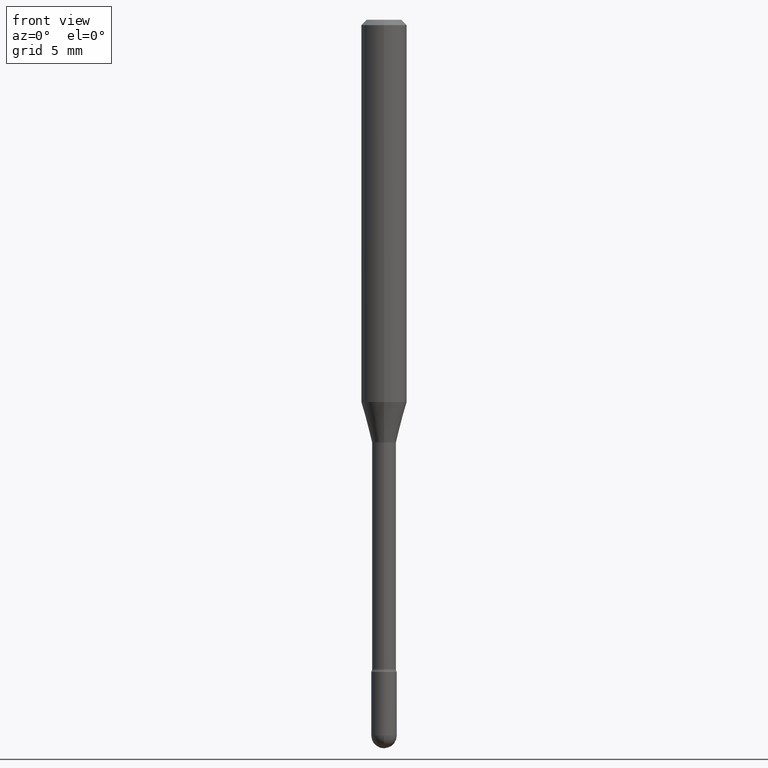
[diagram: clean part render]
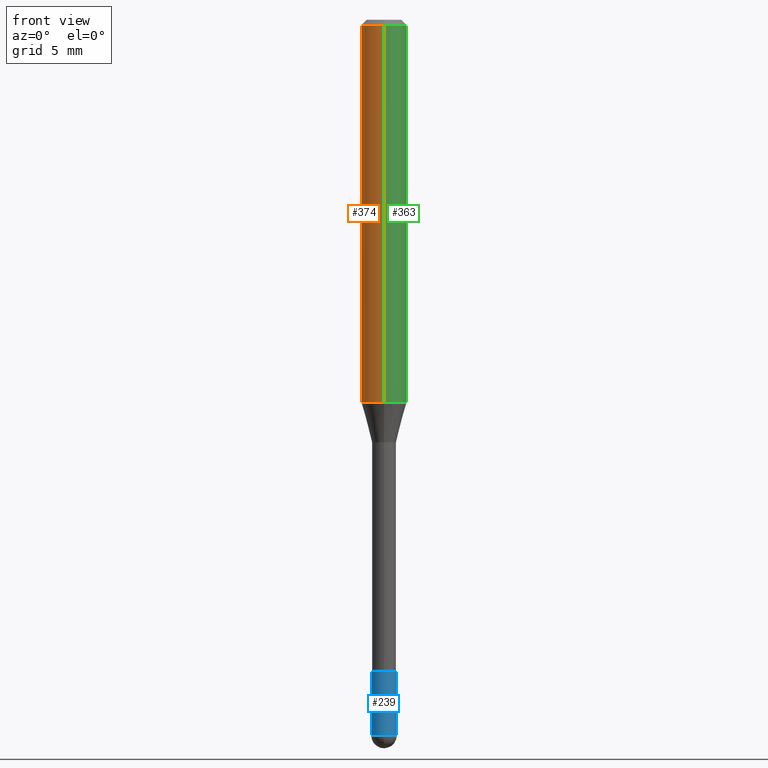
[diagram: same view with three faces highlighted in distinct colors, each labeled with its STEP entity id]
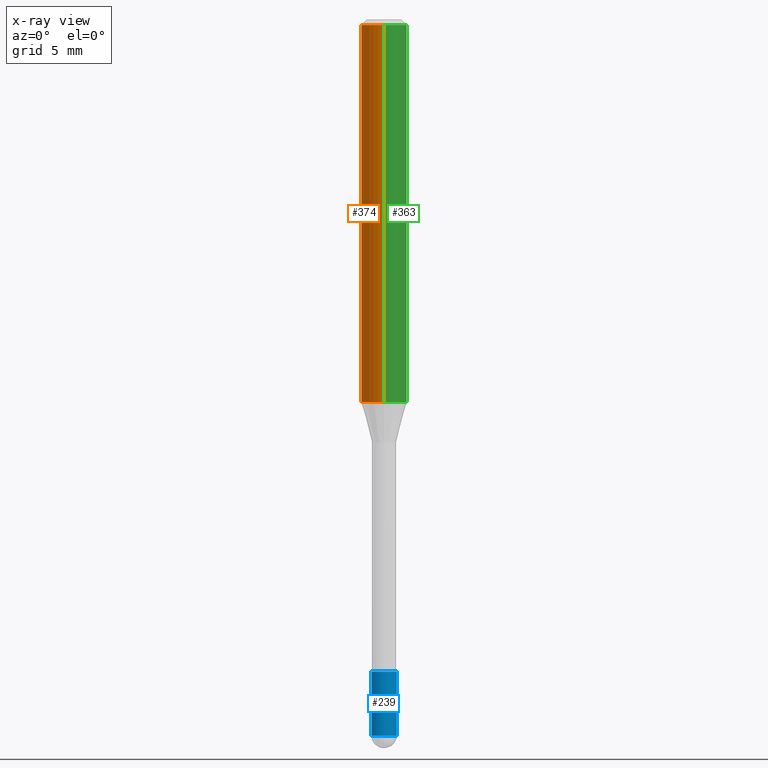
[diagram: x-ray of the same camera — body ghosted, the three highlighted faces saturated]
A machine part, front view with three faces highlighted in distinct colors.
The next image is the same camera in x-ray (body ghosted, the three faces saturated) — at least one of them is partly hidden behind the body in this view.
Their STEP definitions:

[orange] entity #374 — the highlighted cylindrical surface (edge-blend (fillet) strip) has radius 1.5875 mm, axis along (-0, 0, 1).
#8 = VERTEX_POINT ( 'NONE', #291 ) ;
#16 = FACE_OUTER_BOUND ( 'NONE', #332, .T. ) ;
#21 = AXIS2_PLACEMENT_3D ( 'NONE', #160, #297, #212 ) ;
#52 = VERTEX_POINT ( 'NONE', #474 ) ;
#55 = LINE ( 'NONE', #546, #342 ) ;
#62 = EDGE_CURVE ( 'NONE', #8, #202, #528, .T. ) ;
#67 = DIRECTION ( 'NONE',  ( -2.445497683573463397E-29, 3.491439984779462686E-15, 1.000000000000000000 ) ) ;
#69 = CARTESIAN_POINT ( 'NONE',  ( -4.364351673553912750E-16, -0.06250000000000005551, -0.01499999999999986587 ) ) ;
#94 = CARTESIAN_POINT ( 'NONE',  ( 4.440892098500625669E-16, 0.06250000000000000000, 2.598583998425296453E-16 ) ) ;
#122 = AXIS2_PLACEMENT_3D ( 'NONE', #497, #465, #462 ) ;
#137 = ORIENTED_EDGE ( 'NONE', *, *, #371, .T. ) ;
#160 = CARTESIAN_POINT ( 'NONE',  ( -1.169113584055446105E-44, 1.669184350826100908E-30, 4.780733988912460139E-16 ) ) ;
#164 = DIRECTION ( 'NONE',  ( -6.982962677686265922E-15, -1.000000000000000000, 4.370956789862821150E-15 ) ) ;
#182 = EDGE_CURVE ( 'NONE', #52, #202, #55, .T. ) ;
#183 = VECTOR ( 'NONE', #365, 39.37007874015748143 ) ;
#189 = ORIENTED_EDGE ( 'NONE', *, *, #182, .T. ) ;
#202 = VERTEX_POINT ( 'NONE', #69 ) ;
#210 = CYLINDRICAL_SURFACE ( 'NONE', #21, 0.06250000000000000000 ) ;
#212 = DIRECTION ( 'NONE',  ( -6.982962677686265922E-15, -1.000000000000000000, 3.491439984779462292E-15 ) ) ;
#233 = EDGE_CURVE ( 'NONE', #289, #8, #410, .T. ) ;
#245 = AXIS2_PLACEMENT_3D ( 'NONE', #549, #67, #164 ) ;
#289 = VERTEX_POINT ( 'NONE', #347 ) ;
#291 = CARTESIAN_POINT ( 'NONE',  ( 4.440892098500883528E-16, 0.06249999999999993755, -0.01500000000000030129 ) ) ;
#296 = CIRCLE ( 'NONE', #245, 0.06250000000000000000 ) ;
#297 = DIRECTION ( 'NONE',  ( -2.445497683573463397E-29, 3.491439984779462686E-15, 1.000000000000000000 ) ) ;
#332 = EDGE_LOOP ( 'NONE', ( #536, #137, #189, #424 ) ) ;
#342 = VECTOR ( 'NONE', #468, 39.37007874015748143 ) ;
#347 = CARTESIAN_POINT ( 'NONE',  ( 4.440892098500882541E-16, 0.06249999999999634320, -1.049531296095961519 ) ) ;
#365 = DIRECTION ( 'NONE',  ( -2.445497683573463397E-29, 3.491439984779462686E-15, 1.000000000000000000 ) ) ;
#371 = EDGE_CURVE ( 'NONE', #289, #52, #296, .T. ) ;
#374 = ADVANCED_FACE ( 'NONE', ( #16 ), #210, .T. ) ;
#410 = LINE ( 'NONE', #94, #183 ) ;
#424 = ORIENTED_EDGE ( 'NONE', *, *, #62, .F. ) ;
#462 = DIRECTION ( 'NONE',  ( -6.982962677686265922E-15, -1.000000000000000000, 3.483106191921935554E-15 ) ) ;
#465 = DIRECTION ( 'NONE',  ( -2.445497683573463397E-29, 3.491439984779462686E-15, 1.000000000000000000 ) ) ;
#468 = DIRECTION ( 'NONE',  ( -2.445497683573463397E-29, 3.491439984779462686E-15, 1.000000000000000000 ) ) ;
#474 = CARTESIAN_POINT ( 'NONE',  ( -4.364351673553658835E-16, -0.06250000000000366374, -1.049531296095960853 ) ) ;
#497 = CARTESIAN_POINT ( 'NONE',  ( 3.668246525360215467E-31, -5.237159977169223045E-17, -0.01500000000000008271 ) ) ;
#528 = CIRCLE ( 'NONE', #122, 0.06250000000000000000 ) ;
#536 = ORIENTED_EDGE ( 'NONE', *, *, #233, .F. ) ;
#546 = CARTESIAN_POINT ( 'NONE',  ( -4.364351673553916201E-16, -0.06250000000000000000, 6.962883979399624318E-16 ) ) ;
#549 = CARTESIAN_POINT ( 'NONE',  ( 2.566626353440528363E-29, -3.664375532466852274E-15, -1.049531296095961297 ) ) ;

[blue] entity #239 — the highlighted cylindrical surface (edge-blend (fillet) strip) has radius 0.889 mm, axis along (-0, 0, 1).
#2 = EDGE_CURVE ( 'NONE', #305, #100, #418, .T. ) ;
#18 = CARTESIAN_POINT ( 'NONE',  ( 0.03500000000000000333, -6.799659907397025402E-15, -1.964999999999999858 ) ) ;
#20 = CIRCLE ( 'NONE', #229, 0.03500000000000000333 ) ;
#26 = CARTESIAN_POINT ( 'NONE',  ( -2.486899575159870668E-16, -0.03500000000000687284, -1.964999999999999858 ) ) ;
#29 = CARTESIAN_POINT ( 'NONE',  ( 4.805346204153793345E-29, -6.860760830826780393E-15, -1.964999999999999858 ) ) ;
#65 = ORIENTED_EDGE ( 'NONE', *, *, #509, .T. ) ;
#79 = ORIENTED_EDGE ( 'NONE', *, *, #117, .F. ) ;
#90 = AXIS2_PLACEMENT_3D ( 'NONE', #225, #431, #518 ) ;
#100 = VERTEX_POINT ( 'NONE', #168 ) ;
#110 = CARTESIAN_POINT ( 'NONE',  ( -0.03500000000000000333, 2.486899575160350887E-16, -1.721627281589217108E-30 ) ) ;
#117 = EDGE_CURVE ( 'NONE', #100, #390, #20, .T. ) ;
#124 = DIRECTION ( 'NONE',  ( 1.000000000000000000, -6.982962677686276966E-15, 0.000000000000000000 ) ) ;
#167 = CARTESIAN_POINT ( 'NONE',  ( -0.03500000000000000333, -6.306566256161970939E-15, -1.964999999999999858 ) ) ;
#168 = CARTESIAN_POINT ( 'NONE',  ( -0.03500000000000000333, -6.306566256161970939E-15, -1.790000000000000036 ) ) ;
#179 = DIRECTION ( 'NONE',  ( -2.445468806185136877E-29, 3.491481338843145188E-15, 1.000000000000000000 ) ) ;
#205 = VERTEX_POINT ( 'NONE', #26 ) ;
#225 = CARTESIAN_POINT ( 'NONE',  ( 0.000000000000000000, 0.000000000000000000, 0.000000000000000000 ) ) ;
#228 = CARTESIAN_POINT ( 'NONE',  ( 0.03500000000000000333, -2.444036937190193250E-16, 1.706661871528577808E-30 ) ) ;
#229 = AXIS2_PLACEMENT_3D ( 'NONE', #430, #388, #124 ) ;
#239 = ADVANCED_FACE ( 'NONE', ( #534 ), #466, .T. ) ;
#250 = VECTOR ( 'NONE', #414, 39.37007874015748143 ) ;
#254 = EDGE_CURVE ( 'NONE', #205, #457, #272, .T. ) ;
#261 = VECTOR ( 'NONE', #179, 39.37007874015748143 ) ;
#268 = DIRECTION ( 'NONE',  ( -2.445468806185136597E-29, 3.491481338843145583E-15, 1.000000000000000000 ) ) ;
#269 = ORIENTED_EDGE ( 'NONE', *, *, #564, .T. ) ;
#272 = CIRCLE ( 'NONE', #312, 0.03500000000000000333 ) ;
#305 = VERTEX_POINT ( 'NONE', #167 ) ;
#310 = CARTESIAN_POINT ( 'NONE',  ( 4.805346204153793345E-29, -6.860760830826780393E-15, -1.964999999999999858 ) ) ;
#312 = AXIS2_PLACEMENT_3D ( 'NONE', #29, #513, #469 ) ;
#320 = LINE ( 'NONE', #228, #261 ) ;
#359 = DIRECTION ( 'NONE',  ( 1.000000000000000000, -6.982962677686276966E-15, 0.000000000000000000 ) ) ;
#360 = AXIS2_PLACEMENT_3D ( 'NONE', #310, #268, #359 ) ;
#367 = ORIENTED_EDGE ( 'NONE', *, *, #2, .F. ) ;
#388 = DIRECTION ( 'NONE',  ( -2.445468806185136597E-29, 3.491481338843145583E-15, 1.000000000000000000 ) ) ;
#390 = VERTEX_POINT ( 'NONE', #412 ) ;
#405 = ORIENTED_EDGE ( 'NONE', *, *, #254, .T. ) ;
#412 = CARTESIAN_POINT ( 'NONE',  ( 0.03500000000000000333, -6.494155290248250444E-15, -1.790000000000000036 ) ) ;
#414 = DIRECTION ( 'NONE',  ( -2.445468806185136877E-29, 3.491481338843145188E-15, 1.000000000000000000 ) ) ;
#418 = LINE ( 'NONE', #110, #250 ) ;
#430 = CARTESIAN_POINT ( 'NONE',  ( 4.377389163071394665E-29, -6.249751596529231267E-15, -1.790000000000000036 ) ) ;
#431 = DIRECTION ( 'NONE',  ( -2.445468806185136597E-29, 3.491481338843145583E-15, 1.000000000000000000 ) ) ;
#457 = VERTEX_POINT ( 'NONE', #18 ) ;
#466 = CYLINDRICAL_SURFACE ( 'NONE', #90, 0.03500000000000000333 ) ;
#469 = DIRECTION ( 'NONE',  ( 1.000000000000000000, -6.982962677686276966E-15, 0.000000000000000000 ) ) ;
#509 = EDGE_CURVE ( 'NONE', #305, #205, #562, .T. ) ;
#513 = DIRECTION ( 'NONE',  ( -2.445468806185136597E-29, 3.491481338843145583E-15, 1.000000000000000000 ) ) ;
#518 = DIRECTION ( 'NONE',  ( 1.000000000000000000, -6.982962677686265922E-15, 4.876176775795936353E-29 ) ) ;
#534 = FACE_OUTER_BOUND ( 'NONE', #544, .T. ) ;
#544 = EDGE_LOOP ( 'NONE', ( #367, #65, #405, #269, #79 ) ) ;
#562 = CIRCLE ( 'NONE', #360, 0.03500000000000000333 ) ;
#564 = EDGE_CURVE ( 'NONE', #457, #390, #320, .T. ) ;

[green] entity #363 — the highlighted cylindrical surface (edge-blend (fillet) strip) has radius 1.5875 mm, axis along (-0, 0, 1).
#8 = VERTEX_POINT ( 'NONE', #291 ) ;
#52 = VERTEX_POINT ( 'NONE', #474 ) ;
#55 = LINE ( 'NONE', #546, #342 ) ;
#69 = CARTESIAN_POINT ( 'NONE',  ( -4.364351673553912750E-16, -0.06250000000000005551, -0.01499999999999986587 ) ) ;
#74 = DIRECTION ( 'NONE',  ( -2.445497683573463397E-29, 3.491439984779462686E-15, 1.000000000000000000 ) ) ;
#87 = EDGE_CURVE ( 'NONE', #52, #289, #377, .T. ) ;
#94 = CARTESIAN_POINT ( 'NONE',  ( 4.440892098500625669E-16, 0.06250000000000000000, 2.598583998425296453E-16 ) ) ;
#98 = ORIENTED_EDGE ( 'NONE', *, *, #182, .F. ) ;
#107 = ORIENTED_EDGE ( 'NONE', *, *, #126, .F. ) ;
#109 = FACE_OUTER_BOUND ( 'NONE', #135, .T. ) ;
#111 = CIRCLE ( 'NONE', #244, 0.06250000000000000000 ) ;
#121 = DIRECTION ( 'NONE',  ( -6.982962677686265922E-15, -1.000000000000000000, 4.370956789862821150E-15 ) ) ;
#126 = EDGE_CURVE ( 'NONE', #202, #8, #111, .T. ) ;
#135 = EDGE_LOOP ( 'NONE', ( #144, #139, #107, #98 ) ) ;
#139 = ORIENTED_EDGE ( 'NONE', *, *, #233, .T. ) ;
#144 = ORIENTED_EDGE ( 'NONE', *, *, #87, .T. ) ;
#150 = AXIS2_PLACEMENT_3D ( 'NONE', #295, #550, #121 ) ;
#182 = EDGE_CURVE ( 'NONE', #52, #202, #55, .T. ) ;
#183 = VECTOR ( 'NONE', #365, 39.37007874015748143 ) ;
#202 = VERTEX_POINT ( 'NONE', #69 ) ;
#213 = CARTESIAN_POINT ( 'NONE',  ( -1.169113584055446105E-44, 1.669184350826100908E-30, 4.780733988912460139E-16 ) ) ;
#221 = CARTESIAN_POINT ( 'NONE',  ( 3.668246525360215467E-31, -5.237159977169223045E-17, -0.01500000000000008271 ) ) ;
#233 = EDGE_CURVE ( 'NONE', #289, #8, #410, .T. ) ;
#244 = AXIS2_PLACEMENT_3D ( 'NONE', #221, #74, #258 ) ;
#258 = DIRECTION ( 'NONE',  ( -6.982962677686265922E-15, -1.000000000000000000, 3.483106191921935554E-15 ) ) ;
#289 = VERTEX_POINT ( 'NONE', #347 ) ;
#291 = CARTESIAN_POINT ( 'NONE',  ( 4.440892098500883528E-16, 0.06249999999999993755, -0.01500000000000030129 ) ) ;
#295 = CARTESIAN_POINT ( 'NONE',  ( 2.566626353440528363E-29, -3.664375532466852274E-15, -1.049531296095961297 ) ) ;
#342 = VECTOR ( 'NONE', #468, 39.37007874015748143 ) ;
#343 = AXIS2_PLACEMENT_3D ( 'NONE', #213, #453, #413 ) ;
#347 = CARTESIAN_POINT ( 'NONE',  ( 4.440892098500882541E-16, 0.06249999999999634320, -1.049531296095961519 ) ) ;
#363 = ADVANCED_FACE ( 'NONE', ( #109 ), #545, .T. ) ;
#365 = DIRECTION ( 'NONE',  ( -2.445497683573463397E-29, 3.491439984779462686E-15, 1.000000000000000000 ) ) ;
#377 = CIRCLE ( 'NONE', #150, 0.06250000000000000000 ) ;
#410 = LINE ( 'NONE', #94, #183 ) ;
#413 = DIRECTION ( 'NONE',  ( -6.982962677686265922E-15, -1.000000000000000000, 3.491439984779462292E-15 ) ) ;
#453 = DIRECTION ( 'NONE',  ( -2.445497683573463397E-29, 3.491439984779462686E-15, 1.000000000000000000 ) ) ;
#468 = DIRECTION ( 'NONE',  ( -2.445497683573463397E-29, 3.491439984779462686E-15, 1.000000000000000000 ) ) ;
#474 = CARTESIAN_POINT ( 'NONE',  ( -4.364351673553658835E-16, -0.06250000000000366374, -1.049531296095960853 ) ) ;
#545 = CYLINDRICAL_SURFACE ( 'NONE', #343, 0.06250000000000000000 ) ;
#546 = CARTESIAN_POINT ( 'NONE',  ( -4.364351673553916201E-16, -0.06250000000000000000, 6.962883979399624318E-16 ) ) ;
#550 = DIRECTION ( 'NONE',  ( -2.445497683573463397E-29, 3.491439984779462686E-15, 1.000000000000000000 ) ) ;